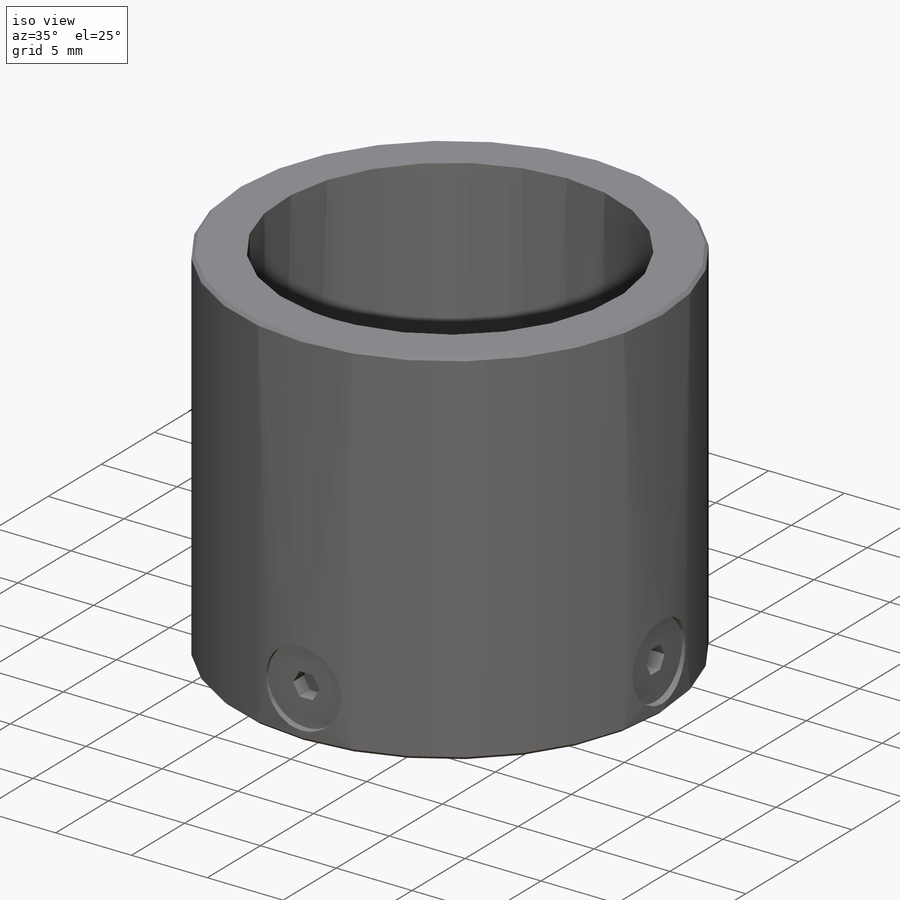
[diagram: iso view]
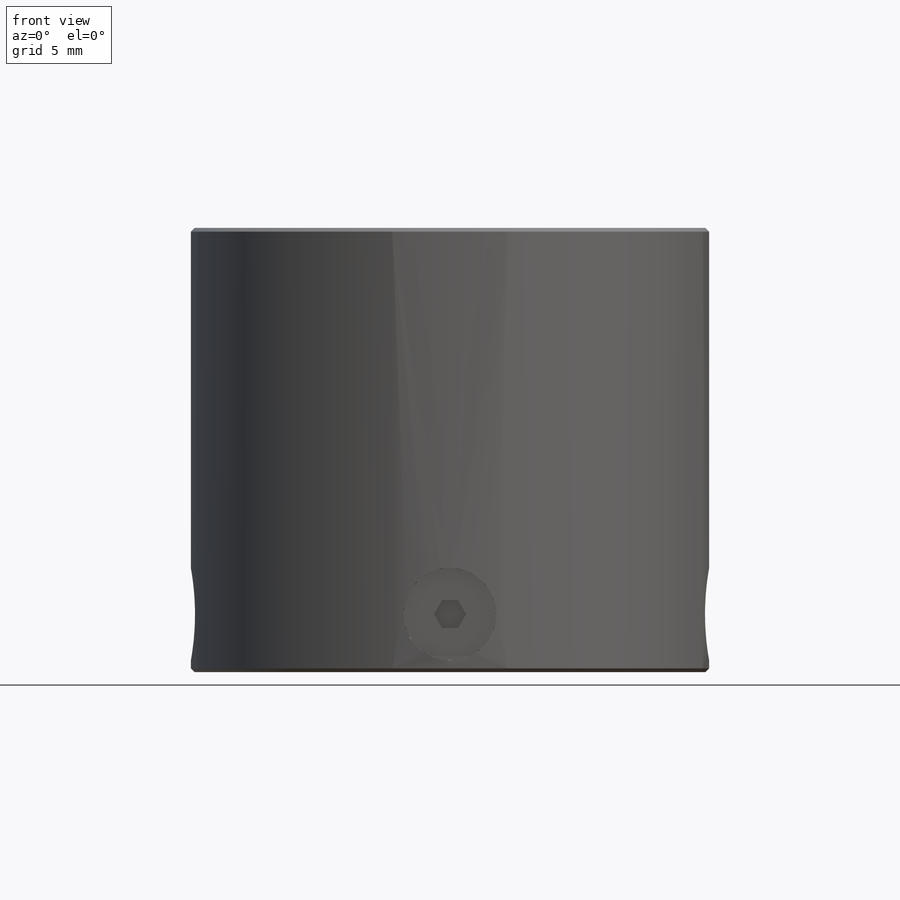
[diagram: front view]
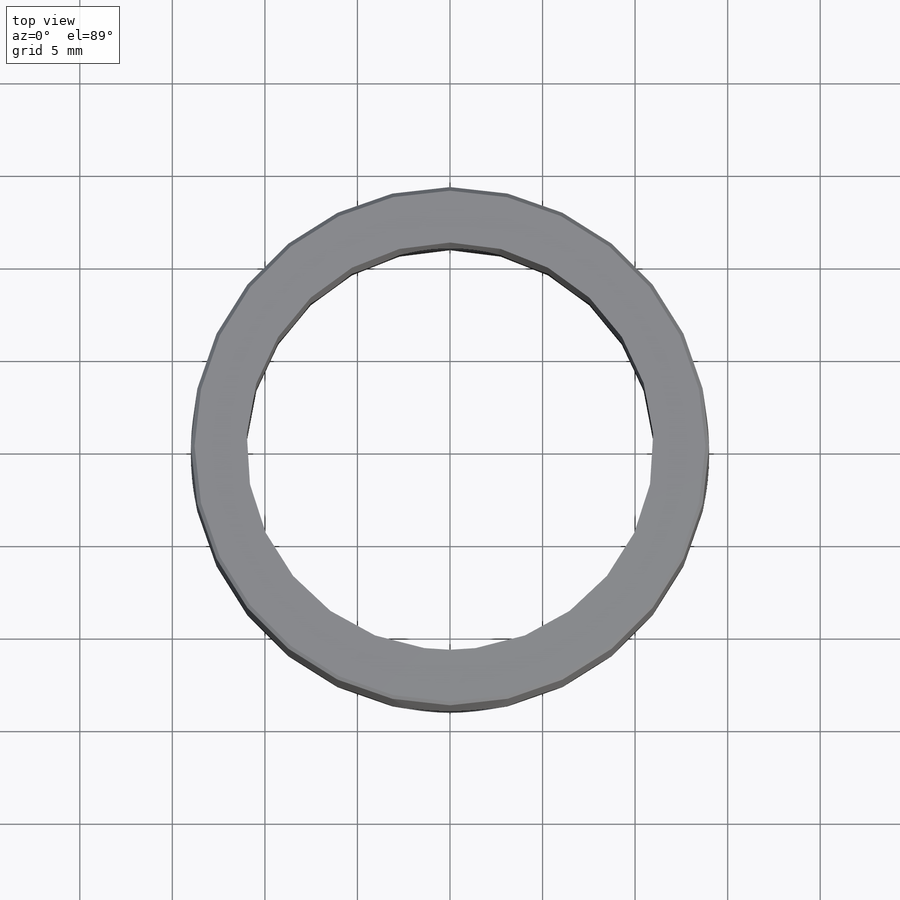
[diagram: top view]
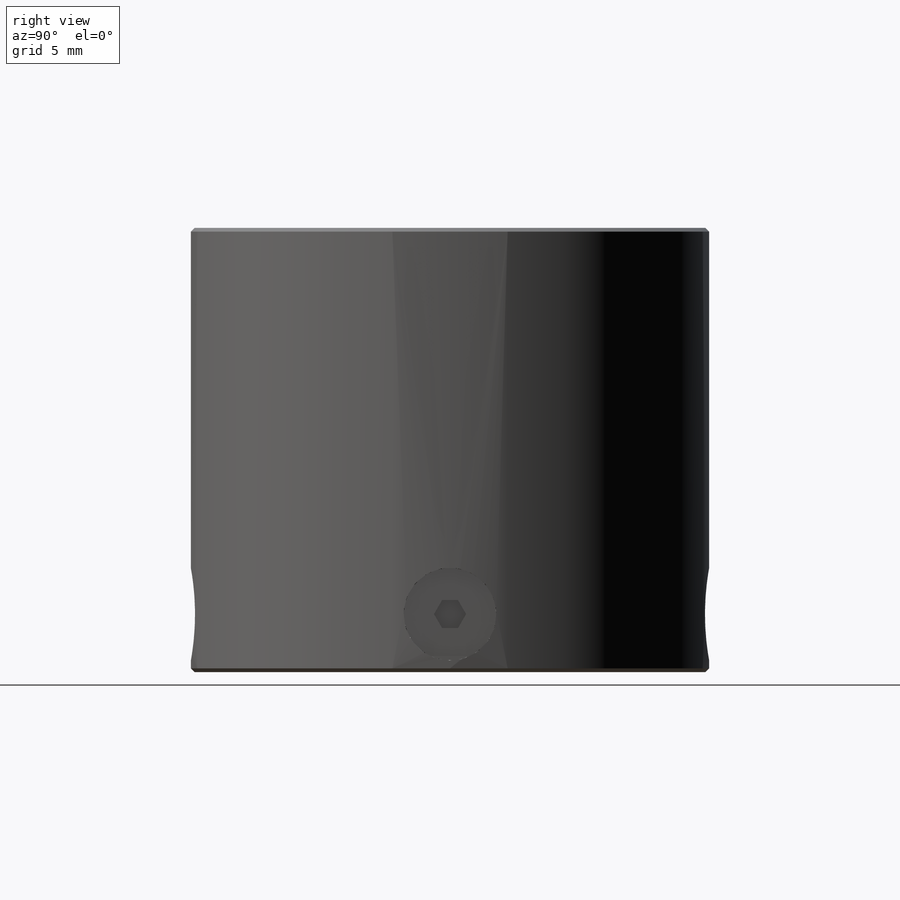
[diagram: right view]
SOLIDWORKS PART (.sldprt)
format: sldprt  version: not decoded by parser v0  size: 340,480 bytes
history: native  units: mm
features: sketch x4, plane x3, extrude x2, cut_extrude x2, pattern_circular x2, material x1, chamfer x1 (+9 scaffold rows collapsed)
feature tree (24):
  scaffold x9  (default folders/planes/origin — collapsed)
  material  "Материал <не указан>"
  plane  "Спереди"
  plane  "Сверху"
  plane  "Справа"
  sketch  "Эскиз1"  dims[D1=22.0mm D2=28.0mm]
  extrude  "Бобышка-Вытянуть1"  Depth=24mm
  chamfer  "Фаска1"  Distance=0.2mm Angle=45deg
  sketch  "Эскиз2"  dims[D1=~0.712137mm]
  cut_extrude  "Вырез-Вытянуть1"  [1 undecoded]
  extrude  "Бобышка-Вытянуть2"  [1 undecoded]
  sketch  "Эскиз2<3>"  dims[D1=1.55mm D19=12.0mm]
  cut_extrude  "Вырез-Вытянуть2"  [1 undecoded]
  sketch  "Эскиз2<4>"  dims[D1=1.0mm]
  pattern_circular  "Круговой массив1"  Count=4 Angle=360deg
  pattern_circular  "Круговой массив2"  Count=4 Angle=360deg
decode coverage: 8 of 11 modeling features carry decoded parameters
note: ~ marks probable driven/reference dimensions
note: 3 parameter values undecoded
summary: no parameter record found for 3 features
note: suppression state not decoded; provenance and decode notes live in map.json
